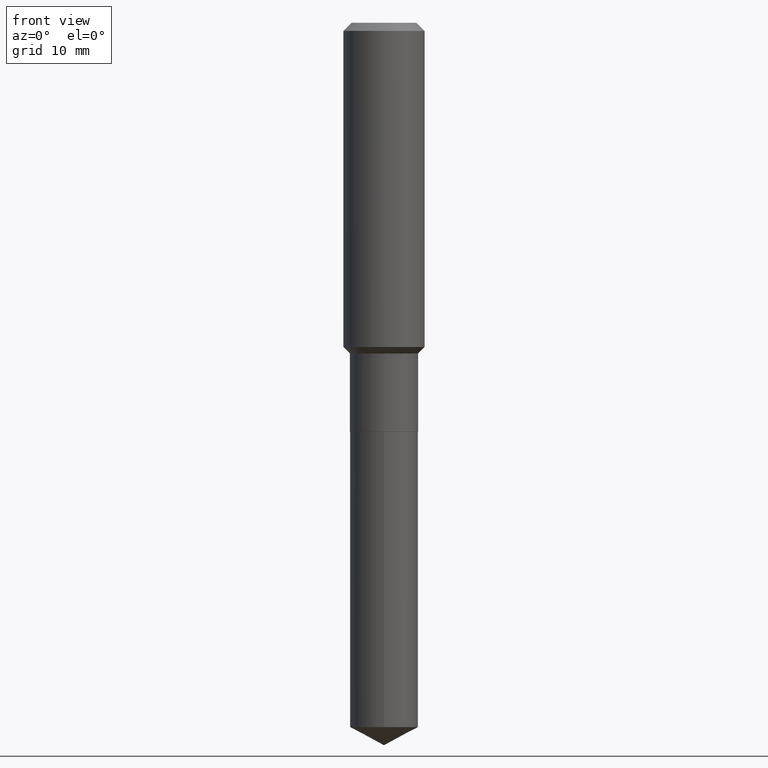
[diagram: clean part render]
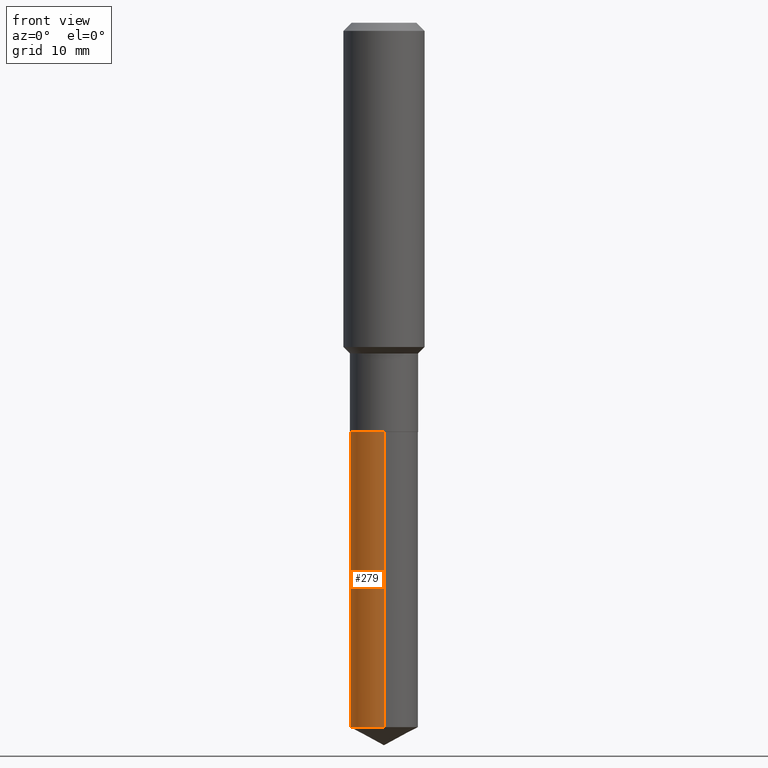
[diagram: same view with one face highlighted and labeled with its STEP entity id]
A machine part, front view. The second image highlights one B-rep face of the part: STEP entity #279.
In plain terms, the highlighted cylindrical surface (edge-blend (fillet) strip) has radius 4.1999 mm, axis along (-0, 0, 1).
Its self-contained STEP definition (entity closure, byte-faithful):
#18 = DIRECTION ( 'NONE',  ( -2.445567022801007266E-29, 3.491340687059075982E-15, 1.000000000000000000 ) ) ;
#43 = DIRECTION ( 'NONE',  ( -2.445567022801007546E-29, 3.491340687059075982E-15, 1.000000000000000000 ) ) ;
#55 = DIRECTION ( 'NONE',  ( -6.982962677686265133E-15, -1.000000000000000000, 3.304321734096478263E-15 ) ) ;
#68 = AXIS2_PLACEMENT_3D ( 'NONE', #257, #454, #404 ) ;
#69 = AXIS2_PLACEMENT_3D ( 'NONE', #241, #18, #387 ) ;
#70 = LINE ( 'NONE', #223, #441 ) ;
#94 = CARTESIAN_POINT ( 'NONE',  ( -1.154632878755340651E-15, -0.1653500000000119041, -3.415981845474774126 ) ) ;
#145 = EDGE_CURVE ( 'NONE', #415, #262, #337, .T. ) ;
#177 = CARTESIAN_POINT ( 'NONE',  ( -1.154632878755375361E-15, -0.1653500000000069081, -1.984199999999999076 ) ) ;
#185 = ORIENTED_EDGE ( 'NONE', *, *, #445, .F. ) ;
#190 = CARTESIAN_POINT ( 'NONE',  ( -1.154632878755375361E-15, -0.1653500000000069081, -1.984199999999999076 ) ) ;
#223 = CARTESIAN_POINT ( 'NONE',  ( 1.174882413579373756E-15, 0.1653499999999930581, -1.984200000000000186 ) ) ;
#241 = CARTESIAN_POINT ( 'NONE',  ( 4.852299205232546721E-29, -6.927797272532567708E-15, -1.984199999999999520 ) ) ;
#254 = VERTEX_POINT ( 'NONE', #177 ) ;
#257 = CARTESIAN_POINT ( 'NONE',  ( 4.852299205232546721E-29, -6.927797272532567708E-15, -1.984199999999999520 ) ) ;
#259 = VERTEX_POINT ( 'NONE', #327 ) ;
#262 = VERTEX_POINT ( 'NONE', #94 ) ;
#278 = CARTESIAN_POINT ( 'NONE',  ( 8.353817670370826055E-29, -1.192663548463118080E-14, -3.415981845474774570 ) ) ;
#279 = ADVANCED_FACE ( 'NONE', ( #281 ), #430, .T. ) ;
#281 = FACE_OUTER_BOUND ( 'NONE', #386, .T. ) ;
#289 = VECTOR ( 'NONE', #463, 39.37007874015748143 ) ;
#297 = ORIENTED_EDGE ( 'NONE', *, *, #145, .T. ) ;
#298 = ORIENTED_EDGE ( 'NONE', *, *, #332, .T. ) ;
#315 = DIRECTION ( 'NONE',  ( -2.445567022801007266E-29, 3.491340687059075982E-15, 1.000000000000000000 ) ) ;
#327 = CARTESIAN_POINT ( 'NONE',  ( 1.174882413579409058E-15, 0.1653499999999930581, -1.984200000000000186 ) ) ;
#330 = CIRCLE ( 'NONE', #68, 0.1653499999999999970 ) ;
#332 = EDGE_CURVE ( 'NONE', #262, #254, #379, .T. ) ;
#337 = CIRCLE ( 'NONE', #389, 0.1653499999999999970 ) ;
#359 = EDGE_CURVE ( 'NONE', #259, #254, #330, .T. ) ;
#369 = CARTESIAN_POINT ( 'NONE',  ( 1.174882413579409058E-15, 0.1653499999999880621, -3.415981845474775458 ) ) ;
#379 = LINE ( 'NONE', #190, #289 ) ;
#386 = EDGE_LOOP ( 'NONE', ( #185, #297, #298, #446 ) ) ;
#387 = DIRECTION ( 'NONE',  ( -6.982962677686265133E-15, -1.000000000000000000, 3.304321734096478263E-15 ) ) ;
#389 = AXIS2_PLACEMENT_3D ( 'NONE', #278, #315, #55 ) ;
#404 = DIRECTION ( 'NONE',  ( -6.982962677686265133E-15, -1.000000000000000000, 3.304321734096478263E-15 ) ) ;
#415 = VERTEX_POINT ( 'NONE', #369 ) ;
#430 = CYLINDRICAL_SURFACE ( 'NONE', #69, 0.1653499999999999970 ) ;
#441 = VECTOR ( 'NONE', #43, 39.37007874015748143 ) ;
#445 = EDGE_CURVE ( 'NONE', #415, #259, #70, .T. ) ;
#446 = ORIENTED_EDGE ( 'NONE', *, *, #359, .F. ) ;
#454 = DIRECTION ( 'NONE',  ( -2.445567022801007266E-29, 3.491340687059075982E-15, 1.000000000000000000 ) ) ;
#463 = DIRECTION ( 'NONE',  ( -2.445567022801007546E-29, 3.491340687059075982E-15, 1.000000000000000000 ) ) ;